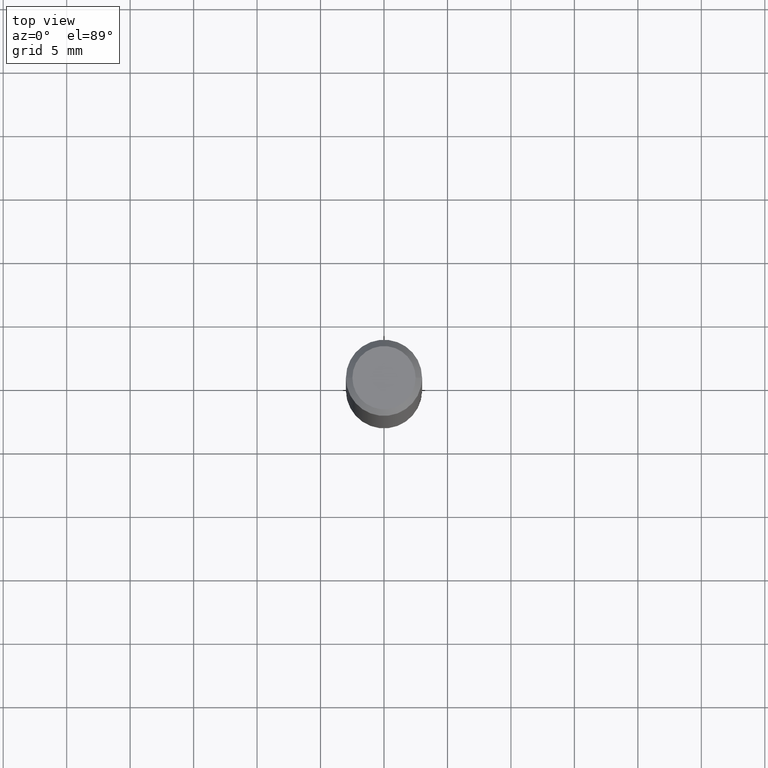
[diagram: clean part render]
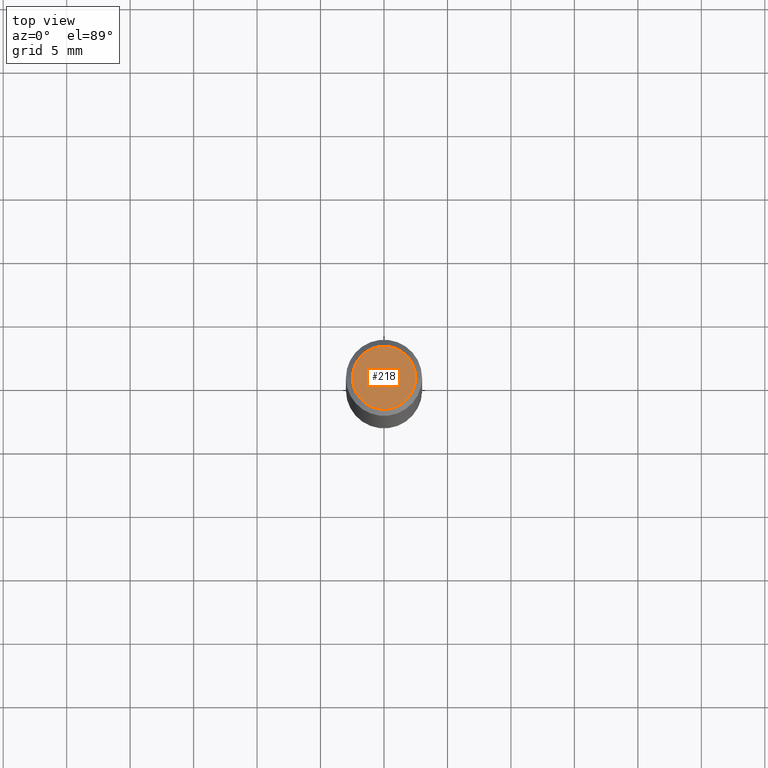
[diagram: same view with one face highlighted and labeled with its STEP entity id]
A machine part, top view. The second image highlights one B-rep face of the part: STEP entity #218.
In plain terms, the highlighted planar face has unit normal (0, -0, -1).
Its self-contained STEP definition (entity closure, byte-faithful):
#10 = EDGE_CURVE ( 'NONE', #202, #342, #251, .T. ) ;
#15 = CARTESIAN_POINT ( 'NONE',  ( 8.350811314681758556E-46, -1.192274536304357760E-31, -3.414809992080329023E-17 ) ) ;
#36 = CIRCLE ( 'NONE', #246, 0.09809999999999990949 ) ;
#71 = CARTESIAN_POINT ( 'NONE',  ( 6.850286386810220606E-16, 0.09809999999999990949, -3.595883693009138711E-16 ) ) ;
#73 = DIRECTION ( 'NONE',  ( 1.000000000000000000, -6.982962677686265922E-15, 4.877161320636771837E-29 ) ) ;
#77 = CARTESIAN_POINT ( 'NONE',  ( 8.350811314681758556E-46, -1.192274536304357760E-31, -3.414809992080329023E-17 ) ) ;
#108 = DIRECTION ( 'NONE',  ( 1.000000000000000000, -6.982962677686265922E-15, 4.877161320636771837E-29 ) ) ;
#127 = FACE_OUTER_BOUND ( 'NONE', #152, .T. ) ;
#133 = ORIENTED_EDGE ( 'NONE', *, *, #187, .T. ) ;
#136 = PLANE ( 'NONE',  #351 ) ;
#152 = EDGE_LOOP ( 'NONE', ( #234, #133 ) ) ;
#158 = DIRECTION ( 'NONE',  ( -2.445468806185136597E-29, 3.491481338843145583E-15, 1.000000000000000000 ) ) ;
#187 = EDGE_CURVE ( 'NONE', #342, #202, #36, .T. ) ;
#191 = DIRECTION ( 'NONE',  ( -2.445468806185136597E-29, 3.491481338843145583E-15, 1.000000000000000000 ) ) ;
#202 = VERTEX_POINT ( 'NONE', #297 ) ;
#218 = ADVANCED_FACE ( 'NONE', ( #127 ), #136, .F. ) ;
#234 = ORIENTED_EDGE ( 'NONE', *, *, #10, .T. ) ;
#246 = AXIS2_PLACEMENT_3D ( 'NONE', #15, #158, #73 ) ;
#247 = DIRECTION ( 'NONE',  ( 2.438088387897960049E-29, -3.491481338843145188E-15, -1.000000000000000000 ) ) ;
#251 = CIRCLE ( 'NONE', #359, 0.09809999999999990949 ) ;
#271 = CARTESIAN_POINT ( 'NONE',  ( 0.09809999999999990949, -7.765346469475332653E-16, -3.414809992079818112E-17 ) ) ;
#297 = CARTESIAN_POINT ( 'NONE',  ( -0.09809999999999990949, 7.199434520694528223E-16, -3.414809992080820212E-17 ) ) ;
#342 = VERTEX_POINT ( 'NONE', #271 ) ;
#351 = AXIS2_PLACEMENT_3D ( 'NONE', #71, #247, #362 ) ;
#359 = AXIS2_PLACEMENT_3D ( 'NONE', #77, #191, #108 ) ;
#362 = DIRECTION ( 'NONE',  ( -1.000000000000000000, 6.982962677686265922E-15, -4.876176775795935793E-29 ) ) ;